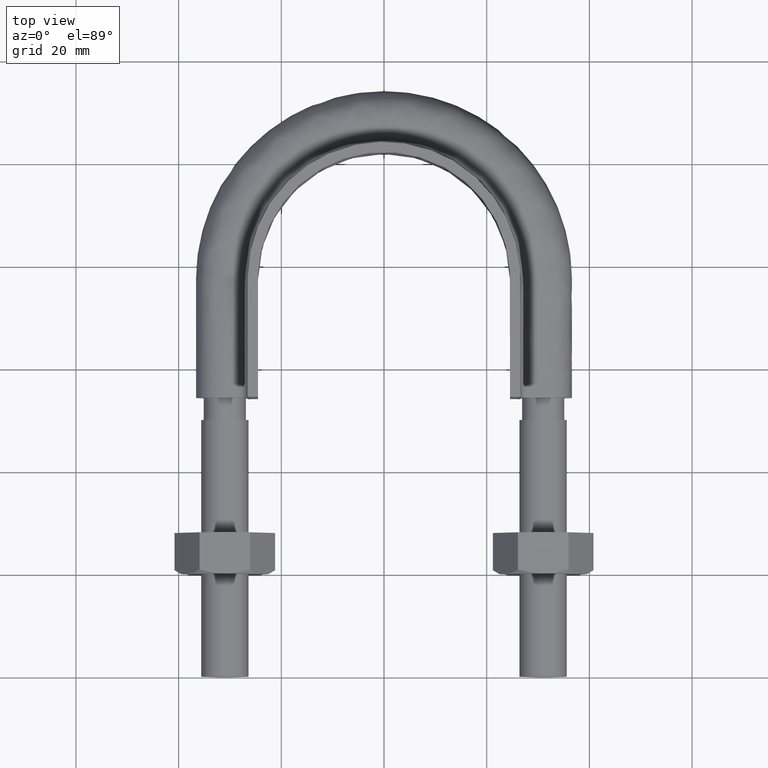
[diagram: clean part render]
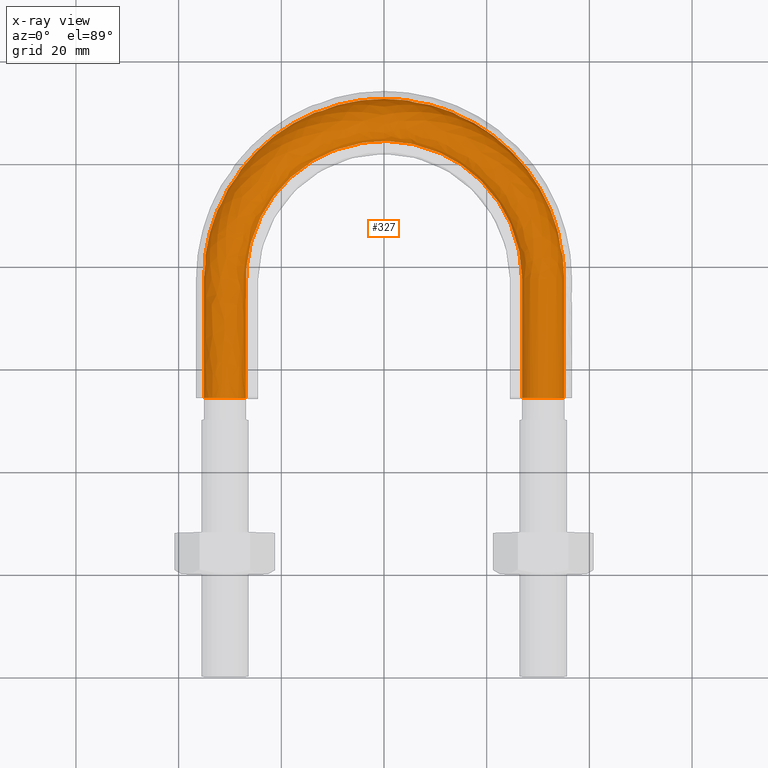
[diagram: x-ray — body ghosted, one internal face saturated and labeled with its STEP entity id]
A machine part, top view, then the same camera in x-ray: the body is ghosted and one INTERNAL B-rep face — a face not visible from any outside direction — is saturated and labeled: STEP entity #327.
In plain terms, the highlighted face is a freeform B-spline surface patch.
Its self-contained STEP definition (entity closure, byte-faithful):
#327 = ADVANCED_FACE( '', ( #422, #423 ), #424, .T. );
#422 = FACE_OUTER_BOUND( '', #1272, .T. );
#423 = FACE_OUTER_BOUND( '', #1273, .T. );
#424 = B_SPLINE_SURFACE_WITH_KNOTS( '', 3, 3, ( ( #1274, #1275, #1276, #1277, #1278, #1279, #1280, #1281, #1282, #1283, #1284, #1285, #1286, #1287, #1288 ), ( #1289, #1290, #1291, #1292, #1293, #1294, #1295, #1296, #1297, #1298, #1299, #1300, #1301, #1302, #1303 ), ( #1304, #1305, #1306, #1307, #1308, #1309, #1310, #1311, #1312, #1313, #1314, #1315, #1316, #1317, #1318 ), ( #1319, #1320, #1321, #1322, #1323, #1324, #1325, #1326, #1327, #1328, #1329, #1330, #1331, #1332, #1333 ), ( #1334, #1335, #1336, #1337, #1338, #1339, #1340, #1341, #1342, #1343, #1344, #1345, #1346, #1347, #1348 ), ( #1349, #1350, #1351, #1352, #1353, #1354, #1355, #1356, #1357, #1358, #1359, #1360, #1361, #1362, #1363 ), ( #1364, #1365, #1366, #1367, #1368, #1369, #1370, #1371, #1372, #1373, #1374, #1375, #1376, #1377, #1378 ), ( #1379, #1380, #1381, #1382, #1383, #1384, #1385, #1386, #1387, #1388, #1389, #1390, #1391, #1392, #1393 ), ( #1394, #1395, #1396, #1397, #1398, #1399, #1400, #1401, #1402, #1403, #1404, #1405, #1406, #1407, #1408 ), ( #1409, #1410, #1411, #1412, #1413, #1414, #1415, #1416, #1417, #1418, #1419, #1420, #1421, #1422, #1423 ) ), .UNSPECIFIED., .T., .F., .F., ( 2, 1, 1, 1, 1, 1, 1, 1, 1, 1, 1, 2 ), ( 4, 3, 1, 1, 1, 1, 1, 3, 4 ), ( -0.285714285714286, -0.142857142857143, 0.000000000000000, 0.142857142857143, 0.285714285714286, 0.428571428571429, 0.571428571428571, 0.714285714285714, 0.857142857142857, 1.00000000000000, 1.14285714285714, 1.28571428571429 ), ( 0.000000000000000, 1.00000000000000, 2.00000000000000, 3.00000000000000, 4.00000000000000, 5.00000000000000, 6.00000000000000, 7.00000000000000, 8.00000000000000 ), .UNSPECIFIED. );
#1272 = EDGE_LOOP( '', ( #1656, #1657, #1658, #1659, #1660, #1661, #1662 ) );
#1273 = EDGE_LOOP( '', ( #1663, #1664, #1665, #1666, #1667, #1668, #1669 ) );
#1274 = CARTESIAN_POINT( '', ( 28.0768231851220, 50.3500000000000, -3.66554778583225 ) );
#1275 = CARTESIAN_POINT( '', ( 28.0768231851220, 59.3833333333333, -3.66554778583225 ) );
#1276 = CARTESIAN_POINT( '', ( 28.0768231851220, 68.4166666666667, -3.66554778583225 ) );
#1277 = CARTESIAN_POINT( '', ( 28.0768231851220, 77.4500000000000, -3.66554778583225 ) );
#1278 = CARTESIAN_POINT( '', ( 28.0768231851220, 82.3360112912107, -3.66554778583225 ) );
#1279 = CARTESIAN_POINT( '', ( 25.4518771226932, 92.1503436557627, -3.66554778583225 ) );
#1280 = CARTESIAN_POINT( '', ( 14.6946481081682, 102.900249823380, -3.66554778583225 ) );
#1281 = CARTESIAN_POINT( '', ( 2.00226016424048E-014, 106.840109865993, -3.66554778583225 ) );
#1282 = CARTESIAN_POINT( '', ( -14.6946481081682, 102.900249823380, -3.66554778583225 ) );
#1283 = CARTESIAN_POINT( '', ( -25.4518771226931, 92.1503436557627, -3.66554778583225 ) );
#1284 = CARTESIAN_POINT( '', ( -28.0768231851219, 82.3360112912107, -3.66554778583225 ) );
#1285 = CARTESIAN_POINT( '', ( -28.0768231851219, 77.4500000000000, -3.66554778583225 ) );
#1286 = CARTESIAN_POINT( '', ( -28.0768231851220, 68.4166666666666, -3.66554778583225 ) );
#1287 = CARTESIAN_POINT( '', ( -28.0768231851220, 59.3833333333333, -3.66554778583225 ) );
#1288 = CARTESIAN_POINT( '', ( -28.0768231851220, 50.3500000000000, -3.66554778583225 ) );
#1289 = CARTESIAN_POINT( '', ( 26.3115884074390, 50.3500000000000, 0.000000000000000 ) );
#1290 = CARTESIAN_POINT( '', ( 26.3115884074390, 59.3833333333333, 0.000000000000000 ) );
#1291 = CARTESIAN_POINT( '', ( 26.3115884074390, 68.4166666666667, 0.000000000000000 ) );
#1292 = CARTESIAN_POINT( '', ( 26.3115884074390, 77.4500000000000, 0.000000000000000 ) );
#1293 = CARTESIAN_POINT( '', ( 26.3115884074390, 82.0206824691230, 0.000000000000000 ) );
#1294 = CARTESIAN_POINT( '', ( 23.8516769021035, 91.2299070291376, 0.000000000000000 ) );
#1295 = CARTESIAN_POINT( '', ( 13.7707720800534, 101.299066916651, 0.000000000000000 ) );
#1296 = CARTESIAN_POINT( '', ( 2.28321510047140E-014, 104.992849152833, 0.000000000000000 ) );
#1297 = CARTESIAN_POINT( '', ( -13.7707720800534, 101.299066916651, 0.000000000000000 ) );
#1298 = CARTESIAN_POINT( '', ( -23.8516769021034, 91.2299070291376, 0.000000000000000 ) );
#1299 = CARTESIAN_POINT( '', ( -26.3115884074390, 82.0206824691230, 0.000000000000000 ) );
#1300 = CARTESIAN_POINT( '', ( -26.3115884074390, 77.4500000000000, 0.000000000000000 ) );
#1301 = CARTESIAN_POINT( '', ( -26.3115884074390, 68.4166666666666, 0.000000000000000 ) );
#1302 = CARTESIAN_POINT( '', ( -26.3115884074390, 59.3833333333333, 0.000000000000000 ) );
#1303 = CARTESIAN_POINT( '', ( -26.3115884074390, 50.3500000000000, 0.000000000000000 ) );
#1304 = CARTESIAN_POINT( '', ( 28.0768231851220, 50.3500000000000, 3.66554778583225 ) );
#1305 = CARTESIAN_POINT( '', ( 28.0768231851220, 59.3833333333333, 3.66554778583225 ) );
#1306 = CARTESIAN_POINT( '', ( 28.0768231851220, 68.4166666666667, 3.66554778583225 ) );
#1307 = CARTESIAN_POINT( '', ( 28.0768231851220, 77.4500000000000, 3.66554778583225 ) );
#1308 = CARTESIAN_POINT( '', ( 28.0768231851220, 82.3360112912107, 3.66554778583225 ) );
#1309 = CARTESIAN_POINT( '', ( 25.4518771226932, 92.1503436557627, 3.66554778583225 ) );
#1310 = CARTESIAN_POINT( '', ( 14.6946481081682, 102.900249823380, 3.66554778583225 ) );
#1311 = CARTESIAN_POINT( '', ( 2.86962190222888E-014, 106.840109865993, 3.66554778583225 ) );
#1312 = CARTESIAN_POINT( '', ( -14.6946481081682, 102.900249823380, 3.66554778583225 ) );
#1313 = CARTESIAN_POINT( '', ( -25.4518771226931, 92.1503436557627, 3.66554778583225 ) );
#1314 = CARTESIAN_POINT( '', ( -28.0768231851219, 82.3360112912107, 3.66554778583225 ) );
#1315 = CARTESIAN_POINT( '', ( -28.0768231851219, 77.4500000000000, 3.66554778583225 ) );
#1316 = CARTESIAN_POINT( '', ( -28.0768231851220, 68.4166666666667, 3.66554778583225 ) );
#1317 = CARTESIAN_POINT( '', ( -28.0768231851220, 59.3833333333333, 3.66554778583225 ) );
#1318 = CARTESIAN_POINT( '', ( -28.0768231851220, 50.3500000000000, 3.66554778583225 ) );
#1319 = CARTESIAN_POINT( '', ( 32.0432697263483, 50.3500000000000, 4.57086332538453 ) );
#1320 = CARTESIAN_POINT( '', ( 32.0432697263483, 59.3833333333333, 4.57086332538453 ) );
#1321 = CARTESIAN_POINT( '', ( 32.0432697263483, 68.4166666666667, 4.57086332538454 ) );
#1322 = CARTESIAN_POINT( '', ( 32.0432697263483, 77.4500000000000, 4.57086332538454 ) );
#1323 = CARTESIAN_POINT( '', ( 32.0432697263483, 83.0445487229059, 4.57086332538454 ) );
#1324 = CARTESIAN_POINT( '', ( 29.0474943802225, 94.2185459823037, 4.57086332538453 ) );
#1325 = CARTESIAN_POINT( '', ( 16.7705786997056, 106.498075156623, 4.57086332538454 ) );
#1326 = CARTESIAN_POINT( '', ( 2.83371616416212E-014, 110.990867011211, 4.57086332538454 ) );
#1327 = CARTESIAN_POINT( '', ( -16.7705786997056, 106.498075156623, 4.57086332538454 ) );
#1328 = CARTESIAN_POINT( '', ( -29.0474943802224, 94.2185459823038, 4.57086332538453 ) );
#1329 = CARTESIAN_POINT( '', ( -32.0432697263483, 83.0445487229059, 4.57086332538454 ) );
#1330 = CARTESIAN_POINT( '', ( -32.0432697263483, 77.4500000000000, 4.57086332538454 ) );
#1331 = CARTESIAN_POINT( '', ( -32.0432697263483, 68.4166666666667, 4.57086332538454 ) );
#1332 = CARTESIAN_POINT( '', ( -32.0432697263483, 59.3833333333333, 4.57086332538453 ) );
#1333 = CARTESIAN_POINT( '', ( -32.0432697263483, 50.3500000000000, 4.57086332538453 ) );
#1334 = CARTESIAN_POINT( '', ( 35.2241128848103, 50.3500000000000, 2.03422555230246 ) );
#1335 = CARTESIAN_POINT( '', ( 35.2241128848102, 59.3833333333333, 2.03422555230246 ) );
#1336 = CARTESIAN_POINT( '', ( 35.2241128848103, 68.4166666666667, 2.03422555230246 ) );
#1337 = CARTESIAN_POINT( '', ( 35.2241128848103, 77.4500000000000, 2.03422555230246 ) );
#1338 = CARTESIAN_POINT( '', ( 35.2241128848103, 83.6127516266125, 2.03422555230246 ) );
#1339 = CARTESIAN_POINT( '', ( 31.9309555425463, 95.8771154732363, 2.03422555230246 ) );
#1340 = CARTESIAN_POINT( '', ( 18.4353457779711, 109.383307058185, 2.03422555230247 ) );
#1341 = CARTESIAN_POINT( '', ( 2.44079813970887E-014, 114.319515798123, 2.03422555230246 ) );
#1342 = CARTESIAN_POINT( '', ( -18.4353457779711, 109.383307058185, 2.03422555230247 ) );
#1343 = CARTESIAN_POINT( '', ( -31.9309555425463, 95.8771154732363, 2.03422555230246 ) );
#1344 = CARTESIAN_POINT( '', ( -35.2241128848102, 83.6127516266125, 2.03422555230246 ) );
#1345 = CARTESIAN_POINT( '', ( -35.2241128848102, 77.4500000000000, 2.03422555230246 ) );
#1346 = CARTESIAN_POINT( '', ( -35.2241128848102, 68.4166666666667, 2.03422555230246 ) );
#1347 = CARTESIAN_POINT( '', ( -35.2241128848102, 59.3833333333333, 2.03422555230246 ) );
#1348 = CARTESIAN_POINT( '', ( -35.2241128848102, 50.3500000000000, 2.03422555230246 ) );
#1349 = CARTESIAN_POINT( '', ( 35.2241128848103, 50.3500000000000, -2.03422555230246 ) );
#1350 = CARTESIAN_POINT( '', ( 35.2241128848102, 59.3833333333333, -2.03422555230246 ) );
#1351 = CARTESIAN_POINT( '', ( 35.2241128848103, 68.4166666666667, -2.03422555230246 ) );
#1352 = CARTESIAN_POINT( '', ( 35.2241128848103, 77.4500000000000, -2.03422555230246 ) );
#1353 = CARTESIAN_POINT( '', ( 35.2241128848103, 83.6127516266125, -2.03422555230246 ) );
#1354 = CARTESIAN_POINT( '', ( 31.9309555425464, 95.8771154732363, -2.03422555230246 ) );
#1355 = CARTESIAN_POINT( '', ( 18.4353457779711, 109.383307058185, -2.03422555230246 ) );
#1356 = CARTESIAN_POINT( '', ( 2.18058961831235E-014, 114.319515798123, -2.03422555230246 ) );
#1357 = CARTESIAN_POINT( '', ( -18.4353457779711, 109.383307058185, -2.03422555230246 ) );
#1358 = CARTESIAN_POINT( '', ( -31.9309555425463, 95.8771154732363, -2.03422555230246 ) );
#1359 = CARTESIAN_POINT( '', ( -35.2241128848102, 83.6127516266125, -2.03422555230246 ) );
#1360 = CARTESIAN_POINT( '', ( -35.2241128848102, 77.4500000000000, -2.03422555230246 ) );
#1361 = CARTESIAN_POINT( '', ( -35.2241128848102, 68.4166666666666, -2.03422555230246 ) );
#1362 = CARTESIAN_POINT( '', ( -35.2241128848102, 59.3833333333333, -2.03422555230246 ) );
#1363 = CARTESIAN_POINT( '', ( -35.2241128848102, 50.3500000000000, -2.03422555230246 ) );
#1364 = CARTESIAN_POINT( '', ( 32.0432697263483, 50.3500000000000, -4.57086332538454 ) );
#1365 = CARTESIAN_POINT( '', ( 32.0432697263483, 59.3833333333333, -4.57086332538454 ) );
#1366 = CARTESIAN_POINT( '', ( 32.0432697263483, 68.4166666666667, -4.57086332538454 ) );
#1367 = CARTESIAN_POINT( '', ( 32.0432697263483, 77.4500000000000, -4.57086332538454 ) );
#1368 = CARTESIAN_POINT( '', ( 32.0432697263483, 83.0445487229059, -4.57086332538454 ) );
#1369 = CARTESIAN_POINT( '', ( 29.0474943802225, 94.2185459823037, -4.57086332538453 ) );
#1370 = CARTESIAN_POINT( '', ( 16.7705786997056, 106.498075156623, -4.57086332538454 ) );
#1371 = CARTESIAN_POINT( '', ( 1.87961825237488E-014, 110.990867011211, -4.57086332538454 ) );
#1372 = CARTESIAN_POINT( '', ( -16.7705786997056, 106.498075156623, -4.57086332538454 ) );
#1373 = CARTESIAN_POINT( '', ( -29.0474943802224, 94.2185459823037, -4.57086332538453 ) );
#1374 = CARTESIAN_POINT( '', ( -32.0432697263483, 83.0445487229059, -4.57086332538454 ) );
#1375 = CARTESIAN_POINT( '', ( -32.0432697263483, 77.4500000000000, -4.57086332538454 ) );
#1376 = CARTESIAN_POINT( '', ( -32.0432697263483, 68.4166666666667, -4.57086332538454 ) );
#1377 = CARTESIAN_POINT( '', ( -32.0432697263483, 59.3833333333333, -4.57086332538454 ) );
#1378 = CARTESIAN_POINT( '', ( -32.0432697263483, 50.3500000000000, -4.57086332538454 ) );
#1379 = CARTESIAN_POINT( '', ( 28.0768231851220, 50.3500000000000, -3.66554778583225 ) );
#1380 = CARTESIAN_POINT( '', ( 28.0768231851220, 59.3833333333333, -3.66554778583225 ) );
#1381 = CARTESIAN_POINT( '', ( 28.0768231851220, 68.4166666666667, -3.66554778583225 ) );
#1382 = CARTESIAN_POINT( '', ( 28.0768231851220, 77.4500000000000, -3.66554778583225 ) );
#1383 = CARTESIAN_POINT( '', ( 28.0768231851220, 82.3360112912107, -3.66554778583225 ) );
#1384 = CARTESIAN_POINT( '', ( 25.4518771226932, 92.1503436557627, -3.66554778583225 ) );
#1385 = CARTESIAN_POINT( '', ( 14.6946481081682, 102.900249823380, -3.66554778583225 ) );
#1386 = CARTESIAN_POINT( '', ( 2.00226016424048E-014, 106.840109865993, -3.66554778583225 ) );
#1387 = CARTESIAN_POINT( '', ( -14.6946481081682, 102.900249823380, -3.66554778583225 ) );
#1388 = CARTESIAN_POINT( '', ( -25.4518771226931, 92.1503436557627, -3.66554778583225 ) );
#1389 = CARTESIAN_POINT( '', ( -28.0768231851219, 82.3360112912107, -3.66554778583225 ) );
#1390 = CARTESIAN_POINT( '', ( -28.0768231851219, 77.4500000000000, -3.66554778583225 ) );
#1391 = CARTESIAN_POINT( '', ( -28.0768231851220, 68.4166666666666, -3.66554778583225 ) );
#1392 = CARTESIAN_POINT( '', ( -28.0768231851220, 59.3833333333333, -3.66554778583225 ) );
#1393 = CARTESIAN_POINT( '', ( -28.0768231851220, 50.3500000000000, -3.66554778583225 ) );
#1394 = CARTESIAN_POINT( '', ( 26.3115884074390, 50.3500000000000, 0.000000000000000 ) );
#1395 = CARTESIAN_POINT( '', ( 26.3115884074390, 59.3833333333333, 0.000000000000000 ) );
#1396 = CARTESIAN_POINT( '', ( 26.3115884074390, 68.4166666666667, 0.000000000000000 ) );
#1397 = CARTESIAN_POINT( '', ( 26.3115884074390, 77.4500000000000, 0.000000000000000 ) );
#1398 = CARTESIAN_POINT( '', ( 26.3115884074390, 82.0206824691230, 0.000000000000000 ) );
#1399 = CARTESIAN_POINT( '', ( 23.8516769021035, 91.2299070291376, 0.000000000000000 ) );
#1400 = CARTESIAN_POINT( '', ( 13.7707720800534, 101.299066916651, 0.000000000000000 ) );
#1401 = CARTESIAN_POINT( '', ( 2.28321510047140E-014, 104.992849152833, 0.000000000000000 ) );
#1402 = CARTESIAN_POINT( '', ( -13.7707720800534, 101.299066916651, 0.000000000000000 ) );
#1403 = CARTESIAN_POINT( '', ( -23.8516769021034, 91.2299070291376, 0.000000000000000 ) );
#1404 = CARTESIAN_POINT( '', ( -26.3115884074390, 82.0206824691230, 0.000000000000000 ) );
#1405 = CARTESIAN_POINT( '', ( -26.3115884074390, 77.4500000000000, 0.000000000000000 ) );
#1406 = CARTESIAN_POINT( '', ( -26.3115884074390, 68.4166666666666, 0.000000000000000 ) );
#1407 = CARTESIAN_POINT( '', ( -26.3115884074390, 59.3833333333333, 0.000000000000000 ) );
#1408 = CARTESIAN_POINT( '', ( -26.3115884074390, 50.3500000000000, 0.000000000000000 ) );
#1409 = CARTESIAN_POINT( '', ( 28.0768231851220, 50.3500000000000, 3.66554778583225 ) );
#1410 = CARTESIAN_POINT( '', ( 28.0768231851220, 59.3833333333333, 3.66554778583225 ) );
#1411 = CARTESIAN_POINT( '', ( 28.0768231851220, 68.4166666666667, 3.66554778583225 ) );
#1412 = CARTESIAN_POINT( '', ( 28.0768231851220, 77.4500000000000, 3.66554778583225 ) );
#1413 = CARTESIAN_POINT( '', ( 28.0768231851220, 82.3360112912107, 3.66554778583225 ) );
#1414 = CARTESIAN_POINT( '', ( 25.4518771226932, 92.1503436557627, 3.66554778583225 ) );
#1415 = CARTESIAN_POINT( '', ( 14.6946481081682, 102.900249823380, 3.66554778583225 ) );
#1416 = CARTESIAN_POINT( '', ( 2.86962190222888E-014, 106.840109865993, 3.66554778583225 ) );
#1417 = CARTESIAN_POINT( '', ( -14.6946481081682, 102.900249823380, 3.66554778583225 ) );
#1418 = CARTESIAN_POINT( '', ( -25.4518771226931, 92.1503436557627, 3.66554778583225 ) );
#1419 = CARTESIAN_POINT( '', ( -28.0768231851219, 82.3360112912107, 3.66554778583225 ) );
#1420 = CARTESIAN_POINT( '', ( -28.0768231851219, 77.4500000000000, 3.66554778583225 ) );
#1421 = CARTESIAN_POINT( '', ( -28.0768231851220, 68.4166666666667, 3.66554778583225 ) );
#1422 = CARTESIAN_POINT( '', ( -28.0768231851220, 59.3833333333333, 3.66554778583225 ) );
#1423 = CARTESIAN_POINT( '', ( -28.0768231851220, 50.3500000000000, 3.66554778583225 ) );
#1656 = ORIENTED_EDGE( '', *, *, #2127, .T. );
#1657 = ORIENTED_EDGE( '', *, *, #2138, .T. );
#1658 = ORIENTED_EDGE( '', *, *, #2139, .T. );
#1659 = ORIENTED_EDGE( '', *, *, #2140, .T. );
#1660 = ORIENTED_EDGE( '', *, *, #2131, .T. );
#1661 = ORIENTED_EDGE( '', *, *, #2129, .T. );
#1662 = ORIENTED_EDGE( '', *, *, #2141, .T. );
#1663 = ORIENTED_EDGE( '', *, *, #2142, .T. );
#1664 = ORIENTED_EDGE( '', *, *, #2143, .F. );
#1665 = ORIENTED_EDGE( '', *, *, #2144, .F. );
#1666 = ORIENTED_EDGE( '', *, *, #2145, .F. );
#1667 = ORIENTED_EDGE( '', *, *, #2146, .F. );
#1668 = ORIENTED_EDGE( '', *, *, #2147, .F. );
#1669 = ORIENTED_EDGE( '', *, *, #2126, .F. );
#2126 = EDGE_CURVE( '', #2287, #2288, #2290, .T. );
#2127 = EDGE_CURVE( '', #2291, #2292, #2293, .T. );
#2129 = EDGE_CURVE( '', #2295, #2296, #2297, .T. );
#2131 = EDGE_CURVE( '', #2299, #2295, #2300, .T. );
#2138 = EDGE_CURVE( '', #2292, #2305, #2310, .T. );
#2139 = EDGE_CURVE( '', #2305, #2303, #2311, .T. );
#2140 = EDGE_CURVE( '', #2303, #2299, #2312, .T. );
#2141 = EDGE_CURVE( '', #2296, #2291, #2313, .T. );
#2142 = EDGE_CURVE( '', #2287, #2314, #2315, .T. );
#2143 = EDGE_CURVE( '', #2316, #2314, #2317, .T. );
#2144 = EDGE_CURVE( '', #2318, #2316, #2319, .T. );
#2145 = EDGE_CURVE( '', #2320, #2318, #2321, .T. );
#2146 = EDGE_CURVE( '', #2322, #2320, #2323, .T. );
#2147 = EDGE_CURVE( '', #2288, #2322, #2324, .T. );
#2287 = VERTEX_POINT( '', #2735 );
#2288 = VERTEX_POINT( '', #2736 );
#2290 = B_SPLINE_CURVE_WITH_KNOTS( '', 3, ( #2738, #2739, #2740, #2741 ), .UNSPECIFIED., .F., .F., ( 4, 4 ), ( -1.00000000000000, -0.857142857142857 ), .UNSPECIFIED. );
#2291 = VERTEX_POINT( '', #2742 );
#2292 = VERTEX_POINT( '', #2743 );
#2293 = B_SPLINE_CURVE_WITH_KNOTS( '', 3, ( #2744, #2745, #2746, #2747 ), .UNSPECIFIED., .F., .F., ( 4, 4 ), ( 5.20417042793042E-017, 0.00365969768494600 ), .UNSPECIFIED. );
#2295 = VERTEX_POINT( '', #2749 );
#2296 = VERTEX_POINT( '', #2750 );
#2297 = B_SPLINE_CURVE_WITH_KNOTS( '', 3, ( #2751, #2752, #2753, #2754 ), .UNSPECIFIED., .F., .F., ( 4, 4 ), ( 0.0182856759681239, 0.0219456464543641 ), .UNSPECIFIED. );
#2299 = VERTEX_POINT( '', #2756 );
#2300 = B_SPLINE_CURVE_WITH_KNOTS( '', 3, ( #2757, #2758, #2759, #2760 ), .UNSPECIFIED., .F., .F., ( 4, 4 ), ( 0.0146317467085373, 0.0182856759681239 ), .UNSPECIFIED. );
#2303 = VERTEX_POINT( '', #2763 );
#2305 = VERTEX_POINT( '', #2765 );
#2310 = B_SPLINE_CURVE_WITH_KNOTS( '', 3, ( #2770, #2771, #2772, #2773 ), .UNSPECIFIED., .F., .F., ( 4, 4 ), ( 0.00365969768494600, 0.00731437302338640 ), .UNSPECIFIED. );
#2311 = B_SPLINE_CURVE_WITH_KNOTS( '', 3, ( #2774, #2775, #2776, #2777 ), .UNSPECIFIED., .F., .F., ( 4, 4 ), ( 0.00731437302338640, 0.0109748044148470 ), .UNSPECIFIED. );
#2312 = B_SPLINE_CURVE_WITH_KNOTS( '', 3, ( #2778, #2779, #2780, #2781 ), .UNSPECIFIED., .F., .F., ( 4, 4 ), ( 0.0109748044148470, 0.0146317467085373 ), .UNSPECIFIED. );
#2313 = B_SPLINE_CURVE_WITH_KNOTS( '', 3, ( #2782, #2783, #2784, #2785 ), .UNSPECIFIED., .F., .F., ( 4, 4 ), ( 0.0219456464543641, 0.0255944202292315 ), .UNSPECIFIED. );
#2314 = VERTEX_POINT( '', #2786 );
#2315 = B_SPLINE_CURVE_WITH_KNOTS( '', 3, ( #2787, #2788, #2789, #2790 ), .UNSPECIFIED., .F., .F., ( 4, 4 ), ( 2.54434820423332E-016, 0.00365969768494565 ), .UNSPECIFIED. );
#2316 = VERTEX_POINT( '', #2791 );
#2317 = B_SPLINE_CURVE_WITH_KNOTS( '', 3, ( #2792, #2793, #2794, #2795 ), .UNSPECIFIED., .F., .F., ( 4, 4 ), ( -0.285714285714286, -0.142857142857143 ), .UNSPECIFIED. );
#2318 = VERTEX_POINT( '', #2796 );
#2319 = B_SPLINE_CURVE_WITH_KNOTS( '', 3, ( #2797, #2798, #2799, #2800 ), .UNSPECIFIED., .F., .F., ( 4, 4 ), ( -0.428571428571429, -0.285714285714286 ), .UNSPECIFIED. );
#2320 = VERTEX_POINT( '', #2801 );
#2321 = B_SPLINE_CURVE_WITH_KNOTS( '', 3, ( #2802, #2803, #2804, #2805 ), .UNSPECIFIED., .F., .F., ( 4, 4 ), ( -0.571428571428571, -0.428571428571429 ), .UNSPECIFIED. );
#2322 = VERTEX_POINT( '', #2806 );
#2323 = B_SPLINE_CURVE_WITH_KNOTS( '', 3, ( #2807, #2808, #2809, #2810 ), .UNSPECIFIED., .F., .F., ( 4, 4 ), ( -0.714285714285714, -0.571428571428571 ), .UNSPECIFIED. );
#2324 = B_SPLINE_CURVE_WITH_KNOTS( '', 3, ( #2811, #2812, #2813, #2814 ), .UNSPECIFIED., .F., .F., ( 4, 4 ), ( -0.857142857142857, -0.714285714285714 ), .UNSPECIFIED. );
#2735 = CARTESIAN_POINT( '', ( 26.9000000000000, 54.3000000000000, -2.58256698510804E-013 ) );
#2736 = CARTESIAN_POINT( '', ( 28.4436918123816, 54.3000000000000, -3.20550907812088 ) );
#2738 = CARTESIAN_POINT( '', ( 26.9000000000000, 54.3000000000000, -1.12908814242640E-012 ) );
#2739 = CARTESIAN_POINT( '', ( 26.9000000000003, 54.3000000000000, -1.22184926194565 ) );
#2740 = CARTESIAN_POINT( '', ( 27.4884115925620, 54.3000000000000, -2.44369852389025 ) );
#2741 = CARTESIAN_POINT( '', ( 28.4436918123816, 54.3000000000000, -3.20550907812087 ) );
#2742 = CARTESIAN_POINT( '', ( -26.9000000000000, 54.3000000000000, 5.33492735711505E-014 ) );
#2743 = CARTESIAN_POINT( '', ( -28.4436918123794, 54.3000000000000, -3.20550907811911 ) );
#2744 = CARTESIAN_POINT( '', ( -26.9000000000000, 54.3000000000000, -1.07769695945059E-013 ) );
#2745 = CARTESIAN_POINT( '', ( -26.9000000000000, 54.3000000000000, -1.22184926194423 ) );
#2746 = CARTESIAN_POINT( '', ( -27.4884115925611, 54.3000000000000, -2.44369852388837 ) );
#2747 = CARTESIAN_POINT( '', ( -28.4436918123794, 54.3000000000000, -3.20550907811911 ) );
#2749 = CARTESIAN_POINT( '', ( -31.9123358292405, 54.3000000000000, 3.99720443994100 ) );
#2750 = CARTESIAN_POINT( '', ( -28.4436918123967, 54.3000000000000, 3.20550907813294 ) );
#2751 = CARTESIAN_POINT( '', ( -31.9123358292484, 54.3000000000000, 3.99720443993889 ) );
#2752 = CARTESIAN_POINT( '', ( -30.7211208792987, 54.3000000000000, 4.26909147886968 ) );
#2753 = CARTESIAN_POINT( '', ( -29.3989720322189, 54.3000000000000, 3.96731963235756 ) );
#2754 = CARTESIAN_POINT( '', ( -28.4436918123968, 54.3000000000000, 3.20550907813293 ) );
#2756 = CARTESIAN_POINT( '', ( -34.6939723583997, 54.3000000000000, 1.77892333038234 ) );
#2757 = CARTESIAN_POINT( '', ( -34.6939723584027, 54.3000000000000, 1.77892333037565 ) );
#2758 = CARTESIAN_POINT( '', ( -34.1638318319952, 54.3000000000000, 2.87977147665495 ) );
#2759 = CARTESIAN_POINT( '', ( -33.1035507791805, 54.3000000000000, 3.72531740101458 ) );
#2760 = CARTESIAN_POINT( '', ( -31.9123358292405, 54.3000000000000, 3.99720443994099 ) );
#2763 = CARTESIAN_POINT( '', ( -34.6939723583864, 54.3000000000000, -1.77892333041003 ) );
#2765 = CARTESIAN_POINT( '', ( -31.9123358292208, 54.3000000000000, -3.99720443994549 ) );
#2770 = CARTESIAN_POINT( '', ( -28.4436918123794, 54.3000000000000, -3.20550907811909 ) );
#2771 = CARTESIAN_POINT( '', ( -29.3989720321976, 54.3000000000000, -3.96731963234970 ) );
#2772 = CARTESIAN_POINT( '', ( -30.7211208792729, 54.3000000000000, -4.26909147886707 ) );
#2773 = CARTESIAN_POINT( '', ( -31.9123358292208, 54.3000000000000, -3.99720443994550 ) );
#2774 = CARTESIAN_POINT( '', ( -31.9123358292097, 54.3000000000000, -3.99720443994759 ) );
#2775 = CARTESIAN_POINT( '', ( -33.1035507791543, 54.3000000000000, -3.72531740102979 ) );
#2776 = CARTESIAN_POINT( '', ( -34.1638318319716, 54.3000000000000, -2.87977147667754 ) );
#2777 = CARTESIAN_POINT( '', ( -34.6939723583864, 54.3000000000000, -1.77892333041003 ) );
#2778 = CARTESIAN_POINT( '', ( -34.6939723583865, 54.3000000000000, -1.77892333040991 ) );
#2779 = CARTESIAN_POINT( '', ( -35.2241128848103, 54.3000000000000, -0.678075184123666 ) );
#2780 = CARTESIAN_POINT( '', ( -35.2241128848147, 54.3000000000000, 0.678075184091753 ) );
#2781 = CARTESIAN_POINT( '', ( -34.6939723583997, 54.3000000000000, 1.77892333038233 ) );
#2782 = CARTESIAN_POINT( '', ( -28.4436918123968, 54.3000000000000, 3.20550907813293 ) );
#2783 = CARTESIAN_POINT( '', ( -27.4884115925682, 54.3000000000000, 2.44369852390315 ) );
#2784 = CARTESIAN_POINT( '', ( -26.9000000000000, 54.3000000000000, 1.22184926195157 ) );
#2785 = CARTESIAN_POINT( '', ( -26.9000000000000, 54.3000000000000, 5.42101086242752E-016 ) );
#2786 = CARTESIAN_POINT( '', ( 28.4436918123792, 54.3000000000000, 3.20550907811889 ) );
#2787 = CARTESIAN_POINT( '', ( 26.9000000000000, 54.3000000000000, 5.42101086242752E-016 ) );
#2788 = CARTESIAN_POINT( '', ( 26.9000000000000, 54.3000000000000, 1.22184926194407 ) );
#2789 = CARTESIAN_POINT( '', ( 27.4884115925610, 54.3000000000000, 2.44369852388813 ) );
#2790 = CARTESIAN_POINT( '', ( 28.4436918123792, 54.3000000000000, 3.20550907811889 ) );
#2791 = CARTESIAN_POINT( '', ( 31.9123358292210, 54.3000000000000, 3.99720443994545 ) );
#2792 = CARTESIAN_POINT( '', ( 31.9123358292210, 54.3000000000000, 3.99720443994546 ) );
#2793 = CARTESIAN_POINT( '', ( 30.7211208792729, 54.3000000000000, 4.26909147886713 ) );
#2794 = CARTESIAN_POINT( '', ( 29.3989720321974, 54.3000000000000, 3.96731963234969 ) );
#2795 = CARTESIAN_POINT( '', ( 28.4436918123792, 54.3000000000000, 3.20550907811889 ) );
#2796 = CARTESIAN_POINT( '', ( 34.6939723584000, 54.3000000000000, 1.77892333038190 ) );
#2797 = CARTESIAN_POINT( '', ( 34.6939723584000, 54.3000000000000, 1.77892333038186 ) );
#2798 = CARTESIAN_POINT( '', ( 34.1638318319897, 54.3000000000000, 2.87977147666306 ) );
#2799 = CARTESIAN_POINT( '', ( 33.1035507791690, 54.3000000000000, 3.72531740102379 ) );
#2800 = CARTESIAN_POINT( '', ( 31.9123358292210, 54.3000000000000, 3.99720443994545 ) );
#2801 = CARTESIAN_POINT( '', ( 34.6939723583999, 54.3000000000000, -1.77892333038200 ) );
#2802 = CARTESIAN_POINT( '', ( 34.6939723583999, 54.3000000000000, -1.77892333038204 ) );
#2803 = CARTESIAN_POINT( '', ( 35.2241128848102, 54.3000000000000, -0.678075184100885 ) );
#2804 = CARTESIAN_POINT( '', ( 35.2241128848103, 54.3000000000000, 0.678075184100738 ) );
#2805 = CARTESIAN_POINT( '', ( 34.6939723584000, 54.3000000000000, 1.77892333038189 ) );
#2806 = CARTESIAN_POINT( '', ( 31.9123358292214, 54.3000000000000, -3.99720443994537 ) );
#2807 = CARTESIAN_POINT( '', ( 31.9123358292214, 54.3000000000000, -3.99720443994537 ) );
#2808 = CARTESIAN_POINT( '', ( 33.1035507791692, 54.3000000000000, -3.72531740102362 ) );
#2809 = CARTESIAN_POINT( '', ( 34.1638318319897, 54.3000000000000, -2.87977147666302 ) );
#2810 = CARTESIAN_POINT( '', ( 34.6939723583999, 54.3000000000000, -1.77892333038200 ) );
#2811 = CARTESIAN_POINT( '', ( 28.4436918123818, 54.3000000000000, -3.20550907812099 ) );
#2812 = CARTESIAN_POINT( '', ( 29.3989720321999, 54.3000000000000, -3.96731963235031 ) );
#2813 = CARTESIAN_POINT( '', ( 30.7211208792742, 54.3000000000000, -4.26909147886695 ) );
#2814 = CARTESIAN_POINT( '', ( 31.9123358292214, 54.3000000000000, -3.99720443994537 ) );